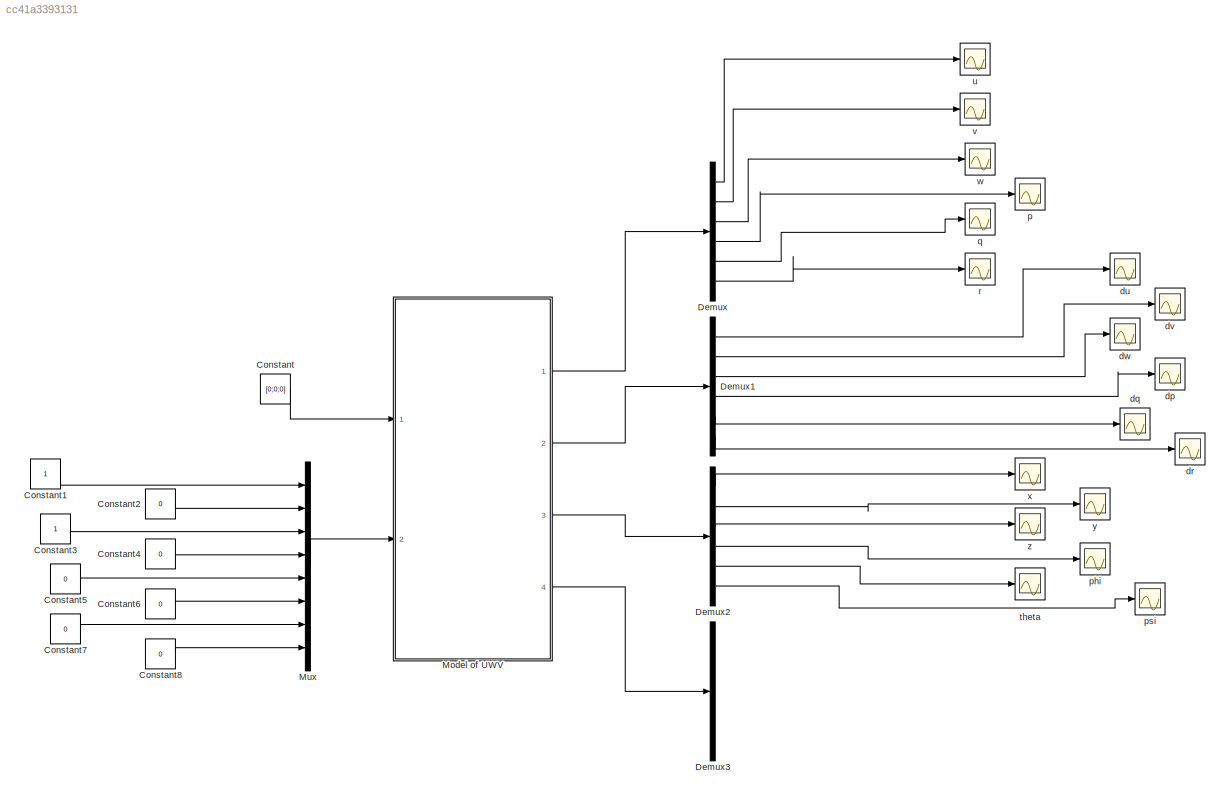
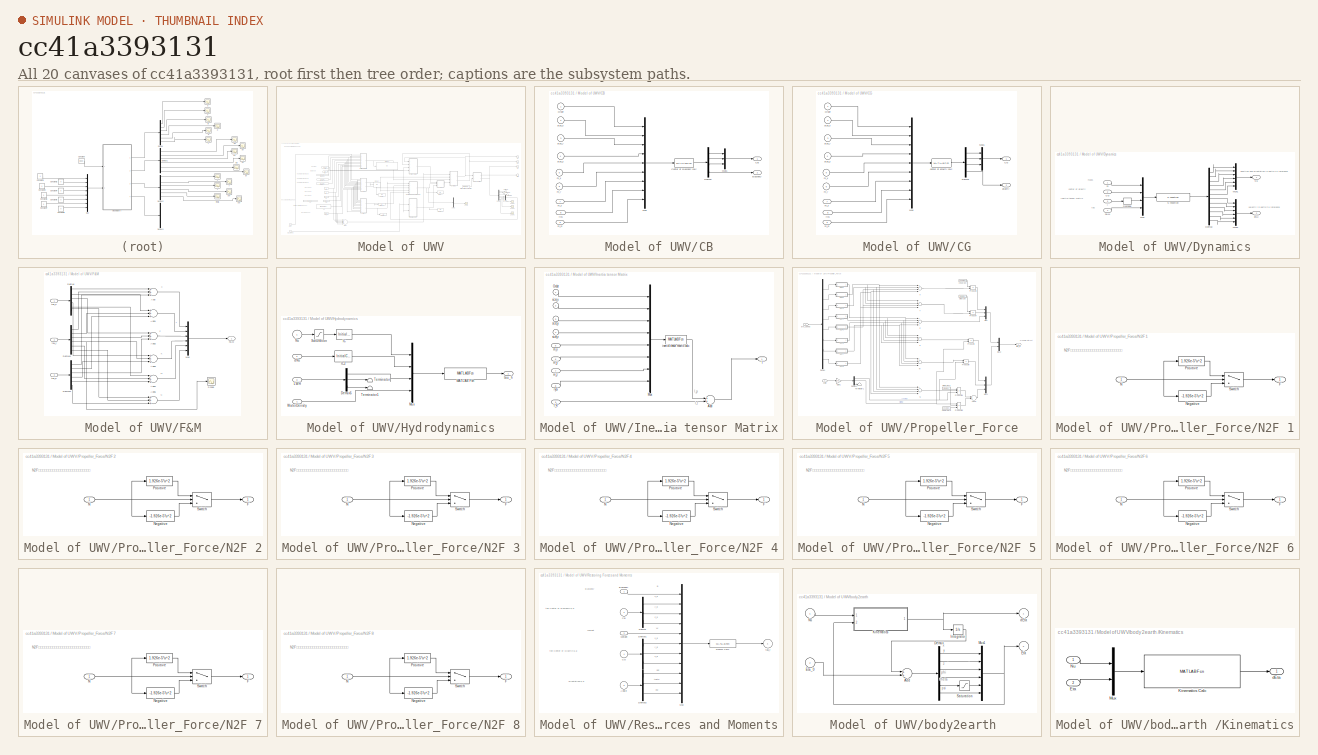
[diagram: thumbnail index - all 20 canvases of the model, root first then tree order]
MODEL slx_cc41a3393131
KIND model
CONFIG AbsTol = auto
CONFIG EnableMultiTasking = on
CONFIG FixedStep = 0.01
CONFIG MaxStep = auto
CONFIG MinStep = auto
CONFIG RelTol = 1e-3
CONFIG SampleTimeConstraint = Unconstrained
CONFIG Solver = FixedStepAuto
CONFIG SolverName = FixedStepAuto
CONFIG StartTime = 0.0
CONFIG StopTime = 5
BLOCK [Constant] Constant
  Value = [0;0;0]
BLOCK [Constant] Constant1
BLOCK [Constant] Constant2
  Value = 0
BLOCK [Constant] Constant3
BLOCK [Constant] Constant4
  Value = 0
BLOCK [Constant] Constant5
  Value = 0
BLOCK [Constant] Constant6
  Value = 0
BLOCK [Constant] Constant7
  Value = 0
BLOCK [Constant] Constant8
  Value = 0
BLOCK [Demux] Demux
  DisplayOption = bar
  Outputs = 6
  Ports = [1, 6]
BLOCK [Demux] Demux1
  DisplayOption = bar
  Outputs = 6
  Ports = [1, 6]
BLOCK [Demux] Demux2
  DisplayOption = bar
  Outputs = 6
  Ports = [1, 6]
BLOCK [Demux] Demux3
  DisplayOption = bar
  Outputs = 6
  Ports = [1, 6]
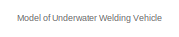
[diagram: Model of UWV - part 1/5, top left region]
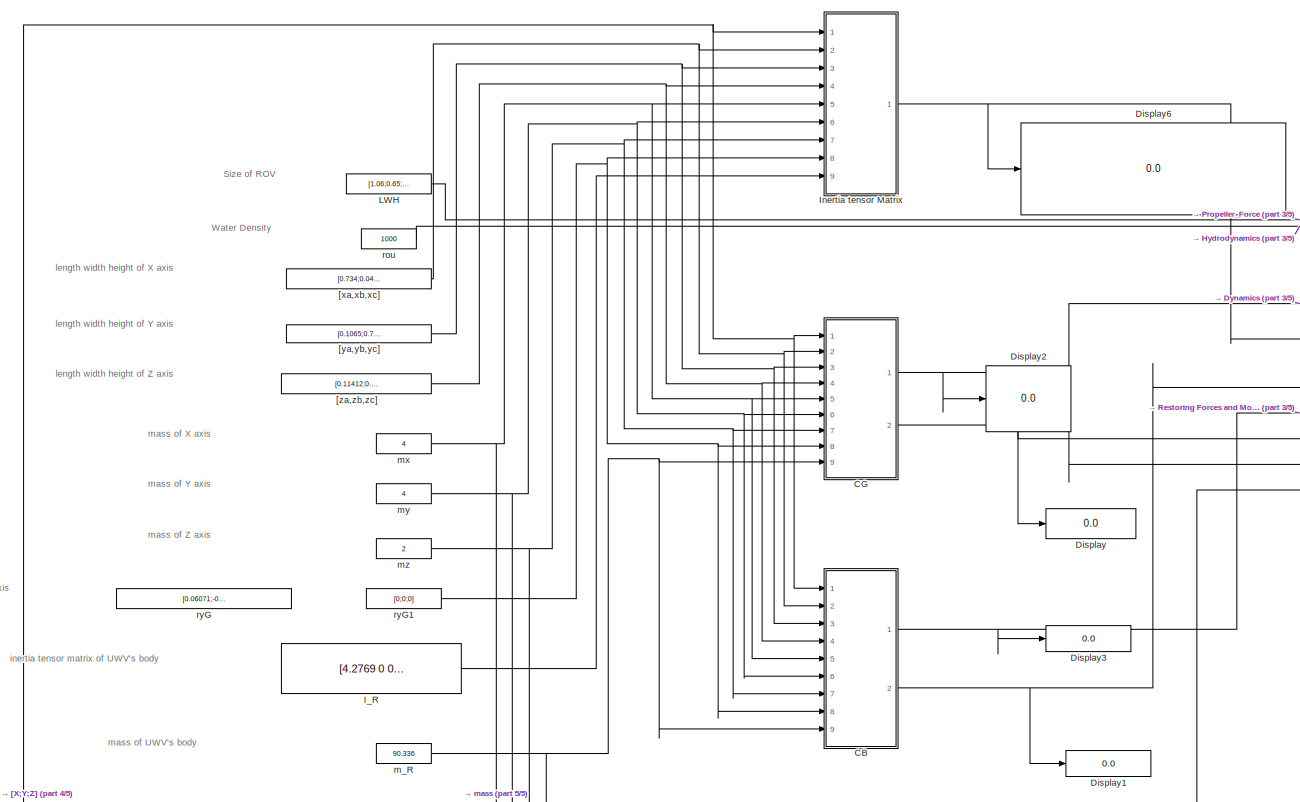
[diagram: Model of UWV - part 2/5, middle left region]
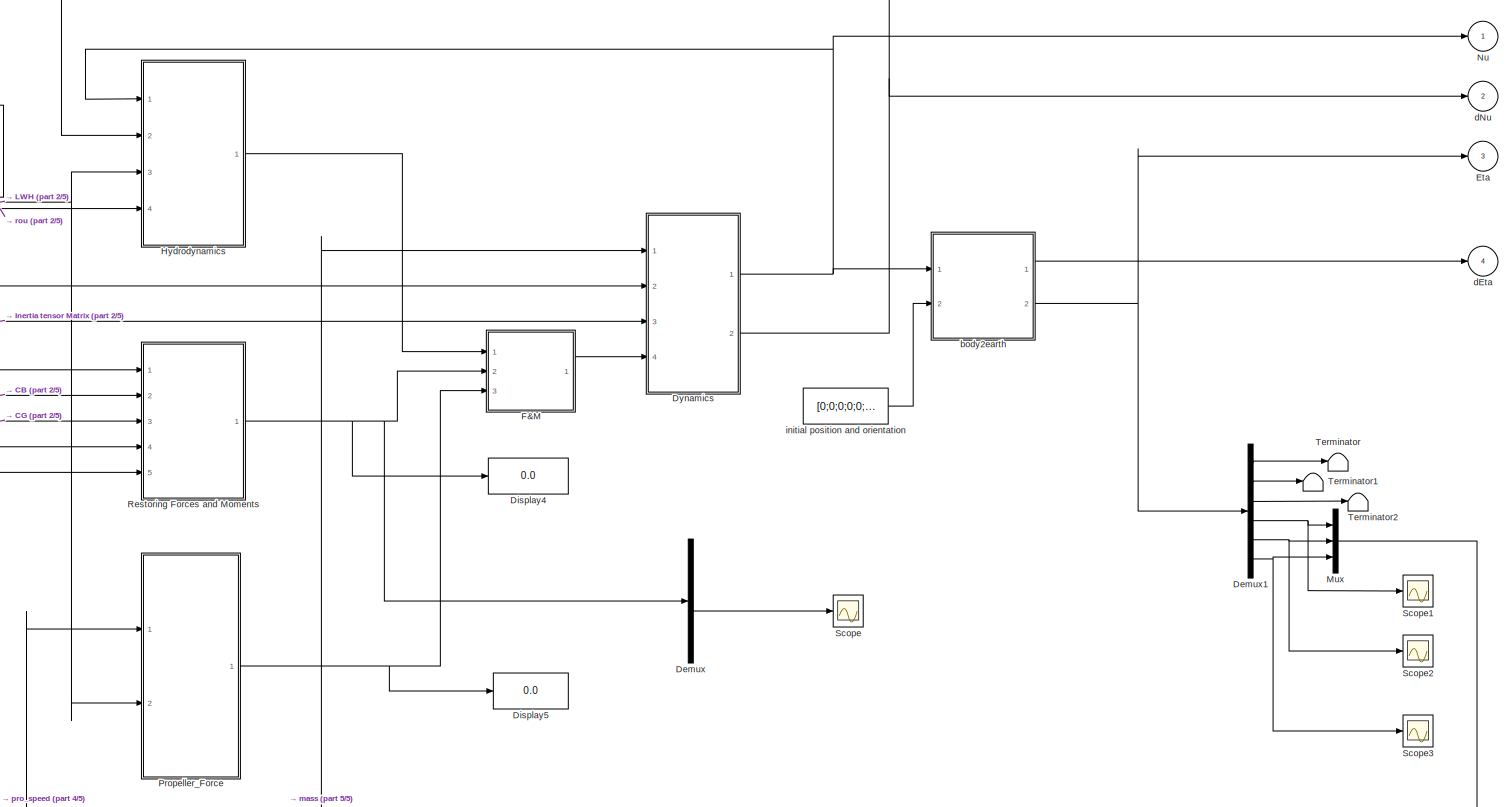
[diagram: Model of UWV - part 3/5, middle right region]
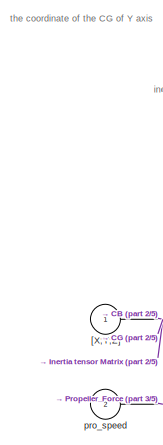
[diagram: Model of UWV - part 4/5, bottom left region]
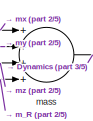
[diagram: Model of UWV - part 5/5, bottom left region]
BLOCK [SubSystem] Model of UWV
  Ports = [2, 4]
  RequestExecContextInheritance = off
  Variant = off
BLOCK [SubSystem] Model of UWV/CB
  Ports = [9, 2]
  RequestExecContextInheritance = off
  Variant = off
BLOCK [Outport] Model of UWV/CB/Buoyancy
  IconDisplay = Port number
  Port = 2
BLOCK [Outport] Model of UWV/CB/CB
  IconDisplay = Port number
BLOCK [MATLABFcn] Model of UWV/CB/Center of Buoyancy calc
  MATLABFcn = CB
  Output1D = off
  Ports = [1, 1]
BLOCK [Demux] Model of UWV/CB/Demux
  DisplayOption = bar
  Ports = [1, 4]
BLOCK [Mux] Model of UWV/CB/Mux
  DisplayOption = bar
  Inputs = 9
  Ports = [9, 1]
BLOCK [Mux] Model of UWV/CB/Mux1
  DisplayOption = bar
  Inputs = 3
  Ports = [3, 1]
BLOCK [Inport] Model of UWV/CB/Order
  IconDisplay = Port number
BLOCK [Inport] Model of UWV/CB/m_R
  IconDisplay = Port number
  Port = 9
BLOCK [Inport] Model of UWV/CB/m_x
  IconDisplay = Port number
  Port = 5
BLOCK [Inport] Model of UWV/CB/m_y
  IconDisplay = Port number
  Port = 6
BLOCK [Inport] Model of UWV/CB/m_z
  IconDisplay = Port number
  Port = 7
BLOCK [Inport] Model of UWV/CB/ryG
  IconDisplay = Port number
  Port = 8
BLOCK [Inport] Model of UWV/CB/size_x
  IconDisplay = Port number
  Port = 2
BLOCK [Inport] Model of UWV/CB/size_y
  IconDisplay = Port number
  Port = 3
BLOCK [Inport] Model of UWV/CB/size_z
  IconDisplay = Port number
  Port = 4
BLOCK [SubSystem] Model of UWV/CG
  Ports = [9, 2]
  RequestExecContextInheritance = off
  Variant = off
BLOCK [Outport] Model of UWV/CG/CG
  IconDisplay = Port number
BLOCK [Demux] Model of UWV/CG/Demux
  DisplayOption = bar
  Ports = [1, 4]
BLOCK [Mux] Model of UWV/CG/Mux
  DisplayOption = bar
  Inputs = 9
  Ports = [9, 1]
BLOCK [Mux] Model of UWV/CG/Mux1
  DisplayOption = bar
  Inputs = 3
  Ports = [3, 1]
BLOCK [Inport] Model of UWV/CG/Order
  IconDisplay = Port number
BLOCK [MATLABFcn] Model of UWV/CG/center of gravity calc
  MATLABFcn = CG
  Output1D = off
  Ports = [1, 1]
BLOCK [Outport] Model of UWV/CG/gravity
  IconDisplay = Port number
  Port = 2
BLOCK [Inport] Model of UWV/CG/m_R
  IconDisplay = Port number
  Port = 9
BLOCK [Inport] Model of UWV/CG/m_x
  IconDisplay = Port number
  Port = 5
BLOCK [Inport] Model of UWV/CG/m_y
  IconDisplay = Port number
  Port = 6
BLOCK [Inport] Model of UWV/CG/m_z
  IconDisplay = Port number
  Port = 7
BLOCK [Inport] Model of UWV/CG/ryG
  IconDisplay = Port number
  Port = 8
BLOCK [Inport] Model of UWV/CG/size_x
  IconDisplay = Port number
  Port = 2
BLOCK [Inport] Model of UWV/CG/size_y
  IconDisplay = Port number
  Port = 3
BLOCK [Inport] Model of UWV/CG/size_z
  IconDisplay = Port number
  Port = 4
BLOCK [Demux] Model of UWV/Demux
  DisplayOption = bar
  Outputs = 6
  Ports = [1, 6]
BLOCK [Demux] Model of UWV/Demux1
  DisplayOption = bar
  Outputs = 6
  Ports = [1, 6]
BLOCK [Display] Model of UWV/Display
  Decimation = 1
  Ports = [1]
BLOCK [Display] Model of UWV/Display1
  Decimation = 1
  Ports = [1]
BLOCK [Display] Model of UWV/Display2
  Decimation = 1
  Ports = [1]
BLOCK [Display] Model of UWV/Display3
  Decimation = 1
  Ports = [1]
BLOCK [Display] Model of UWV/Display4
  Decimation = 1
  Ports = [1]
BLOCK [Display] Model of UWV/Display5
  Decimation = 1
  Ports = [1]
BLOCK [Display] Model of UWV/Display6
  Decimation = 1
  Ports = [1]
BLOCK [SubSystem] Model of UWV/Dynamics
  Ports = [4, 2]
  RequestExecContextInheritance = off
  Variant = off
BLOCK [Inport] Model of UWV/Dynamics/CG
  IconDisplay = Port number
  Port = 2
BLOCK [Demux] Model of UWV/Dynamics/Demux
  DisplayOption = bar
  Outputs = 12
  Ports = [1, 12]
BLOCK [Inport] Model of UWV/Dynamics/F&M
  IconDisplay = Port number
  Port = 4
BLOCK [Inport] Model of UWV/Dynamics/I
  IconDisplay = Port number
  Port = 3
BLOCK [Mux] Model of UWV/Dynamics/Mux
  DisplayOption = bar
  Ports = [4, 1]
BLOCK [Mux] Model of UWV/Dynamics/Mux1
  DisplayOption = bar
  Inputs = 6
  Ports = [6, 1]
BLOCK [Mux] Model of UWV/Dynamics/Mux2
  DisplayOption = bar
  Inputs = 6
  Ports = [6, 1]
BLOCK [Outport] Model of UWV/Dynamics/Nu
  IconDisplay = Port number
BLOCK [Reshape] Model of UWV/Dynamics/Reshape
  Ports = [1, 1]
BLOCK [S-Function] Model of UWV/Dynamics/S-Function
  EnableBusSupport = off
  FunctionName = Dynamics
  Ports = [1, 1]
  SFcnIsStateOwnerBlock = off
  SFunctionDeploymentMode = off
BLOCK [Outport] Model of UWV/Dynamics/dNu
  IconDisplay = Port number
  Port = 2
BLOCK [Inport] Model of UWV/Dynamics/m
  IconDisplay = Port number
BLOCK [Outport] Model of UWV/Eta
  IconDisplay = Port number
  Port = 3
BLOCK [SubSystem] Model of UWV/F&M
  Ports = [3, 1]
  RequestExecContextInheritance = off
  Variant = off
BLOCK [Sum] Model of UWV/F&M/Add
  InputSameDT = off
  Inputs = +++
  OutDataTypeStr = Inherit: Inherit via internal rule
  Ports = [3, 1]
  SaturateOnIntegerOverflow = off
BLOCK [Sum] Model of UWV/F&M/Add1
  InputSameDT = off
  Inputs = +++
  OutDataTypeStr = Inherit: Inherit via internal rule
  Ports = [3, 1]
  SaturateOnIntegerOverflow = off
BLOCK [Sum] Model of UWV/F&M/Add2
  InputSameDT = off
  Inputs = +++
  OutDataTypeStr = Inherit: Inherit via internal rule
  Ports = [3, 1]
  SaturateOnIntegerOverflow = off
BLOCK [Sum] Model of UWV/F&M/Add3
  InputSameDT = off
  Inputs = +++
  OutDataTypeStr = Inherit: Inherit via internal rule
  Ports = [3, 1]
  SaturateOnIntegerOverflow = off
BLOCK [Sum] Model of UWV/F&M/Add4
  InputSameDT = off
  Inputs = +++
  OutDataTypeStr = Inherit: Inherit via internal rule
  Ports = [3, 1]
  SaturateOnIntegerOverflow = off
BLOCK [Sum] Model of UWV/F&M/Add5
  InputSameDT = off
  Inputs = +++
  OutDataTypeStr = Inherit: Inherit via internal rule
  Ports = [3, 1]
  SaturateOnIntegerOverflow = off
BLOCK [Demux] Model of UWV/F&M/Demux
  DisplayOption = bar
  Outputs = 6
  Ports = [1, 6]
BLOCK [Demux] Model of UWV/F&M/Demux1
  DisplayOption = bar
  Outputs = 6
  Ports = [1, 6]
BLOCK [Demux] Model of UWV/F&M/Demux2
  DisplayOption = bar
  Outputs = 6
  Ports = [1, 6]
BLOCK [Outport] Model of UWV/F&M/F&M
  IconDisplay = Port number
BLOCK [Mux] Model of UWV/F&M/Mux
  DisplayOption = bar
  Inputs = 6
  Ports = [6, 1]
BLOCK [Scope] Model of UWV/F&M/Scope
  NumInputPorts = 1
  Ports = [1]
  ScopeSpecificationString = C++SS(StrPVP('Location','[1, 48, 1921, 1039]'),StrPVP('Open','off'),MxPVP('AxesTitles',53,'struct(''axes1'',''%<SignalLabel>'')'),MxPVP('ScopeGraphics',56,'struct(''FigureColor'',''[0.5 0.5 0.5]'',''AxesColor'',''[0 0 0]'',''AxesTickColor'',''[1 1 1]'',''LineColors'',''[1 1 0;1 0 1;0 1 1;1 0 0;0 1 0;0 0 1]'',''LineStyles'',''-|-|-|-|-|-'',''LineWidths'',''[0.5 0.5 0.5 0.5 0.5 0.5]'',''MarkerStyles...<+271ch>
BLOCK [Inport] Model of UWV/F&M/tau_h
  IconDisplay = Port number
BLOCK [Inport] Model of UWV/F&M/tau_p
  IconDisplay = Port number
  Port = 3
BLOCK [Inport] Model of UWV/F&M/tau_r
  IconDisplay = Port number
  Port = 2
BLOCK [SubSystem] Model of UWV/Hydrodynamics
  Ports = [4, 1]
  RequestExecContextInheritance = off
  Variant = off
BLOCK [Demux] Model of UWV/Hydrodynamics/Demux5
  DisplayOption = bar
  Outputs = 3
  Ports = [1, 3]
BLOCK [InitialCondition] Model of UWV/Hydrodynamics/IC
  Value = 0.001
BLOCK [InitialCondition] Model of UWV/Hydrodynamics/IC2
  Value = 0.001
BLOCK [Inport] Model of UWV/Hydrodynamics/LWH
  IconDisplay = Port number
  Port = 3
BLOCK [MATLABFcn] Model of UWV/Hydrodynamics/MATLAB Fcn
  MATLABFcn = Hydrodynamics
  Output1D = off
  OutputDimensions = 6
  Ports = [1, 1]
BLOCK [Mux] Model of UWV/Hydrodynamics/Mux
  DisplayOption = bar
  Ports = [4, 1]
BLOCK [Inport] Model of UWV/Hydrodynamics/Nu
  IconDisplay = Port number
BLOCK [Saturate] Model of UWV/Hydrodynamics/Saturation
  InputPortMap = u0
  LowerLimit = -0.8
  Ports = [1, 1]
  UpperLimit = 0.8
BLOCK [Terminator] Model of UWV/Hydrodynamics/Terminator
BLOCK [Terminator] Model of UWV/Hydrodynamics/Terminator1
BLOCK [Inport] Model of UWV/Hydrodynamics/WaterDensity
  IconDisplay = Port number
  Port = 4
BLOCK [Inport] Model of UWV/Hydrodynamics/dNu
  IconDisplay = Port number
  Port = 2
BLOCK [Outport] Model of UWV/Hydrodynamics/tau_h
  IconDisplay = Port number
BLOCK [Constant] Model of UWV/I_R
  Value = [4.2769 0 0;0 10.546 0;0 0 11.5899]
BLOCK [SubSystem] Model of UWV/Inertia tensor Matrix
  Ports = [9, 1]
  RequestExecContextInheritance = off
  Variant = off
BLOCK [Sum] Model of UWV/Inertia tensor Matrix/Add
  InputSameDT = off
  OutDataTypeStr = Inherit: Inherit via internal rule
  Ports = [2, 1]
  SaturateOnIntegerOverflow = off
BLOCK [Outport] Model of UWV/Inertia tensor Matrix/I
  IconDisplay = Port number
BLOCK [Inport] Model of UWV/Inertia tensor Matrix/I_R
  IconDisplay = Port number
  Port = 9
BLOCK [Mux] Model of UWV/Inertia tensor Matrix/Mux
  DisplayOption = bar
  Inputs = 8
  Ports = [8, 1]
BLOCK [Inport] Model of UWV/Inertia tensor Matrix/Order
  IconDisplay = Port number
BLOCK [MATLABFcn] Model of UWV/Inertia tensor Matrix/inertia tensor matrix calc
  MATLABFcn = InertiaTensorMatrix
  Output1D = off
  Ports = [1, 1]
BLOCK [Inport] Model of UWV/Inertia tensor Matrix/m_x
  IconDisplay = Port number
  Port = 5
BLOCK [Inport] Model of UWV/Inertia tensor Matrix/m_y
  IconDisplay = Port number
  Port = 6
BLOCK [Inport] Model of UWV/Inertia tensor Matrix/m_z
  IconDisplay = Port number
  Port = 7
BLOCK [Inport] Model of UWV/Inertia tensor Matrix/ryG
  IconDisplay = Port number
  Port = 8
BLOCK [Inport] Model of UWV/Inertia tensor Matrix/size_x
  IconDisplay = Port number
  Port = 2
BLOCK [Inport] Model of UWV/Inertia tensor Matrix/size_y
  IconDisplay = Port number
  Port = 3
BLOCK [Inport] Model of UWV/Inertia tensor Matrix/size_z
  IconDisplay = Port number
  Port = 4
BLOCK [Constant] Model of UWV/LWH
  Value = [1.06;0.65;0.66]
BLOCK [Mux] Model of UWV/Mux
  DisplayOption = bar
  Inputs = 3
  Ports = [3, 1]
BLOCK [Outport] Model of UWV/Nu
  IconDisplay = Port number
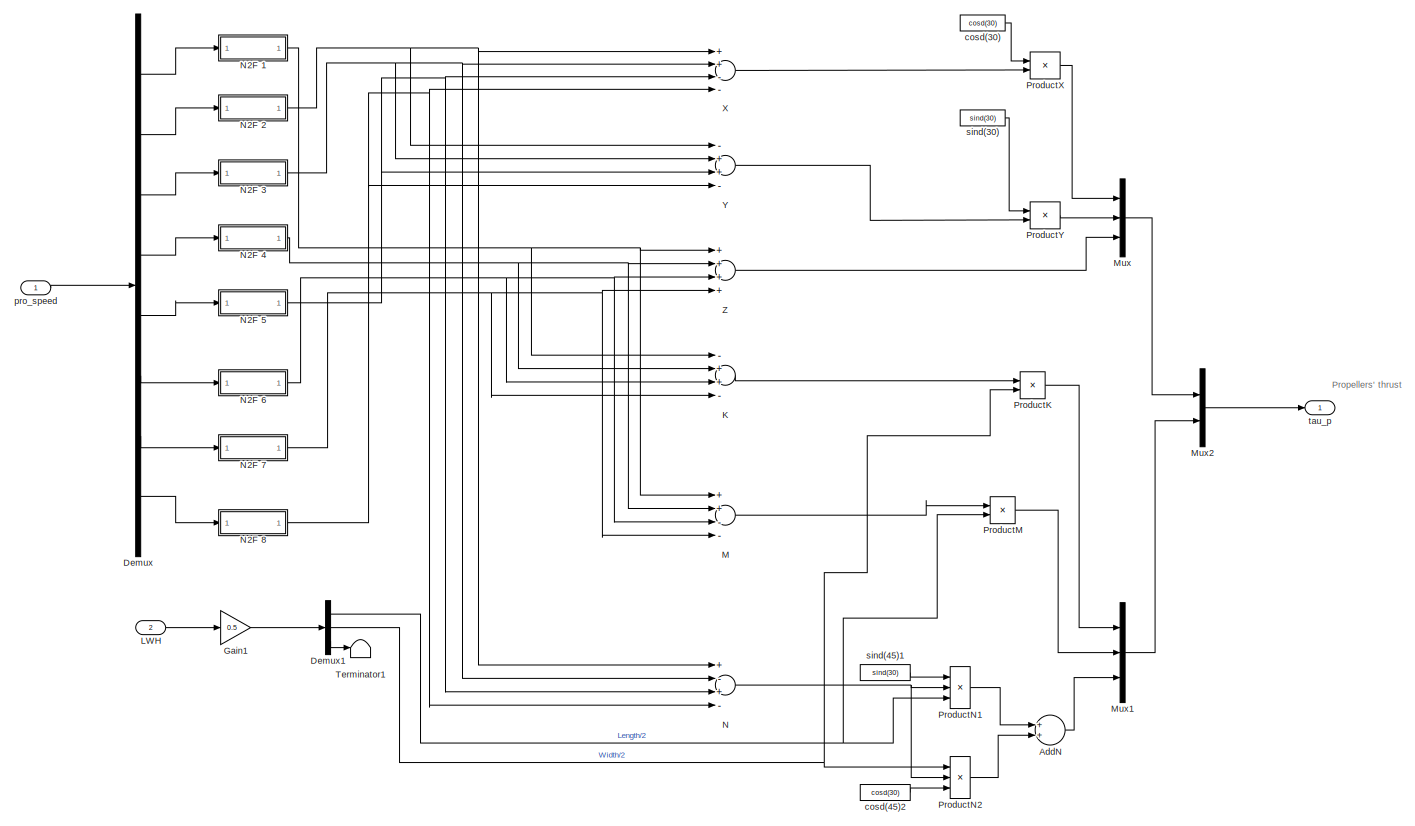
[diagram: Model of UWV/Propeller_Force - part 1/1, most of the canvas]
BLOCK [SubSystem] Model of UWV/Propeller_Force
  Ports = [2, 1]
  RequestExecContextInheritance = off
  Variant = off
BLOCK [Sum] Model of UWV/Propeller_Force/AddN
  InputSameDT = off
  OutDataTypeStr = Inherit: Inherit via internal rule
  Ports = [2, 1]
  SaturateOnIntegerOverflow = off
BLOCK [Demux] Model of UWV/Propeller_Force/Demux
  DisplayOption = bar
  Outputs = 8
  Ports = [1, 8]
BLOCK [Demux] Model of UWV/Propeller_Force/Demux1
  DisplayOption = bar
  Outputs = 3
  Ports = [1, 3]
BLOCK [Gain] Model of UWV/Propeller_Force/Gain1
  Gain = 0.5
  OutDataTypeStr = Inherit: Inherit via internal rule
  ParamDataTypeStr = Inherit: Inherit via internal rule
  SaturateOnIntegerOverflow = off
BLOCK [Sum] Model of UWV/Propeller_Force/K
  InputSameDT = off
  Inputs = -++-
  OutDataTypeStr = Inherit: Inherit via internal rule
  Ports = [4, 1]
  SaturateOnIntegerOverflow = off
BLOCK [Inport] Model of UWV/Propeller_Force/LWH
  IconDisplay = Port number
  Port = 2
BLOCK [Sum] Model of UWV/Propeller_Force/M
  InputSameDT = off
  Inputs = ++--
  OutDataTypeStr = Inherit: Inherit via internal rule
  Ports = [4, 1]
  SaturateOnIntegerOverflow = off
BLOCK [Mux] Model of UWV/Propeller_Force/Mux
  DisplayOption = bar
  Inputs = 3
  Ports = [3, 1]
BLOCK [Mux] Model of UWV/Propeller_Force/Mux1
  DisplayOption = bar
  Inputs = 3
  Ports = [3, 1]
BLOCK [Mux] Model of UWV/Propeller_Force/Mux2
  DisplayOption = bar
  Inputs = 2
  Ports = [2, 1]
BLOCK [Sum] Model of UWV/Propeller_Force/N
  InputSameDT = off
  Inputs = +-+-
  OutDataTypeStr = Inherit: Inherit via internal rule
  Ports = [4, 1]
  SaturateOnIntegerOverflow = off
BLOCK [SubSystem] Model of UWV/Propeller_Force/N2F 1
  Ports = [1, 1]
  RequestExecContextInheritance = off
  Variant = off
BLOCK [Outport] Model of UWV/Propeller_Force/N2F 1/F
  IconDisplay = Port number
BLOCK [Inport] Model of UWV/Propeller_Force/N2F 1/N
  IconDisplay = Port number
BLOCK [Fcn] Model of UWV/Propeller_Force/N2F 1/Negative
  Expr = -1.926e-5*u^2
BLOCK [Fcn] Model of UWV/Propeller_Force/N2F 1/Positive
  Expr = 1.926e-5*u^2
BLOCK [Switch] Model of UWV/Propeller_Force/N2F 1/Switch
  Criteria = u2 > Threshold
  InputSameDT = off
  SaturateOnIntegerOverflow = off
BLOCK [SubSystem] Model of UWV/Propeller_Force/N2F 2
  Ports = [1, 1]
  RequestExecContextInheritance = off
  Variant = off
BLOCK [Outport] Model of UWV/Propeller_Force/N2F 2/F
  IconDisplay = Port number
BLOCK [Inport] Model of UWV/Propeller_Force/N2F 2/N
  IconDisplay = Port number
BLOCK [Fcn] Model of UWV/Propeller_Force/N2F 2/Negative
  Expr = -1.926e-5*u^2
BLOCK [Fcn] Model of UWV/Propeller_Force/N2F 2/Positive
  Expr = 1.926e-5*u^2
BLOCK [Switch] Model of UWV/Propeller_Force/N2F 2/Switch
  Criteria = u2 > Threshold
  InputSameDT = off
  SaturateOnIntegerOverflow = off
BLOCK [SubSystem] Model of UWV/Propeller_Force/N2F 3
  Ports = [1, 1]
  RequestExecContextInheritance = off
  Variant = off
BLOCK [Outport] Model of UWV/Propeller_Force/N2F 3/F
  IconDisplay = Port number
BLOCK [Inport] Model of UWV/Propeller_Force/N2F 3/N
  IconDisplay = Port number
BLOCK [Fcn] Model of UWV/Propeller_Force/N2F 3/Negative
  Expr = -1.926e-5*u^2
BLOCK [Fcn] Model of UWV/Propeller_Force/N2F 3/Positive
  Expr = 1.926e-5*u^2
BLOCK [Switch] Model of UWV/Propeller_Force/N2F 3/Switch
  Criteria = u2 > Threshold
  InputSameDT = off
  SaturateOnIntegerOverflow = off
BLOCK [SubSystem] Model of UWV/Propeller_Force/N2F 4
  Ports = [1, 1]
  RequestExecContextInheritance = off
  Variant = off
BLOCK [Outport] Model of UWV/Propeller_Force/N2F 4/F
  IconDisplay = Port number
BLOCK [Inport] Model of UWV/Propeller_Force/N2F 4/N
  IconDisplay = Port number
BLOCK [Fcn] Model of UWV/Propeller_Force/N2F 4/Negative
  Expr = -1.926e-5*u^2
BLOCK [Fcn] Model of UWV/Propeller_Force/N2F 4/Positive
  Expr = 1.926e-5*u^2
BLOCK [Switch] Model of UWV/Propeller_Force/N2F 4/Switch
  Criteria = u2 > Threshold
  InputSameDT = off
  SaturateOnIntegerOverflow = off
BLOCK [SubSystem] Model of UWV/Propeller_Force/N2F 5
  Ports = [1, 1]
  RequestExecContextInheritance = off
  Variant = off
BLOCK [Outport] Model of UWV/Propeller_Force/N2F 5/F
  IconDisplay = Port number
BLOCK [Inport] Model of UWV/Propeller_Force/N2F 5/N
  IconDisplay = Port number
BLOCK [Fcn] Model of UWV/Propeller_Force/N2F 5/Negative
  Expr = -1.926e-5*u^2
BLOCK [Fcn] Model of UWV/Propeller_Force/N2F 5/Positive
  Expr = 1.926e-5*u^2
BLOCK [Switch] Model of UWV/Propeller_Force/N2F 5/Switch
  Criteria = u2 > Threshold
  InputSameDT = off
  SaturateOnIntegerOverflow = off
BLOCK [SubSystem] Model of UWV/Propeller_Force/N2F 6
  Ports = [1, 1]
  RequestExecContextInheritance = off
  Variant = off
BLOCK [Outport] Model of UWV/Propeller_Force/N2F 6/F
  IconDisplay = Port number
BLOCK [Inport] Model of UWV/Propeller_Force/N2F 6/N
  IconDisplay = Port number
BLOCK [Fcn] Model of UWV/Propeller_Force/N2F 6/Negative
  Expr = -1.926e-5*u^2
BLOCK [Fcn] Model of UWV/Propeller_Force/N2F 6/Positive
  Expr = 1.926e-5*u^2
BLOCK [Switch] Model of UWV/Propeller_Force/N2F 6/Switch
  Criteria = u2 > Threshold
  InputSameDT = off
  SaturateOnIntegerOverflow = off
BLOCK [SubSystem] Model of UWV/Propeller_Force/N2F 7
  Ports = [1, 1]
  RequestExecContextInheritance = off
  Variant = off
BLOCK [Outport] Model of UWV/Propeller_Force/N2F 7/F
  IconDisplay = Port number
BLOCK [Inport] Model of UWV/Propeller_Force/N2F 7/N
  IconDisplay = Port number
BLOCK [Fcn] Model of UWV/Propeller_Force/N2F 7/Negative
  Expr = -1.926e-5*u^2
BLOCK [Fcn] Model of UWV/Propeller_Force/N2F 7/Positive
  Expr = 1.926e-5*u^2
BLOCK [Switch] Model of UWV/Propeller_Force/N2F 7/Switch
  Criteria = u2 > Threshold
  InputSameDT = off
  SaturateOnIntegerOverflow = off
BLOCK [SubSystem] Model of UWV/Propeller_Force/N2F 8
  Ports = [1, 1]
  RequestExecContextInheritance = off
  Variant = off
BLOCK [Outport] Model of UWV/Propeller_Force/N2F 8/F
  IconDisplay = Port number
BLOCK [Inport] Model of UWV/Propeller_Force/N2F 8/N
  IconDisplay = Port number
BLOCK [Fcn] Model of UWV/Propeller_Force/N2F 8/Negative
  Expr = -1.926e-5*u^2
BLOCK [Fcn] Model of UWV/Propeller_Force/N2F 8/Positive
  Expr = 1.926e-5*u^2
BLOCK [Switch] Model of UWV/Propeller_Force/N2F 8/Switch
  Criteria = u2 > Threshold
  InputSameDT = off
  SaturateOnIntegerOverflow = off
BLOCK [Product] Model of UWV/Propeller_Force/ProductK
  InputSameDT = off
  OutDataTypeStr = Inherit: Inherit via internal rule
  Ports = [2, 1]
  RndMeth = Floor
  SaturateOnIntegerOverflow = off
BLOCK [Product] Model of UWV/Propeller_Force/ProductM
  InputSameDT = off
  OutDataTypeStr = Inherit: Inherit via internal rule
  Ports = [2, 1]
  RndMeth = Floor
  SaturateOnIntegerOverflow = off
BLOCK [Product] Model of UWV/Propeller_Force/ProductN1
  InputSameDT = off
  Inputs = 3
  OutDataTypeStr = Inherit: Inherit via internal rule
  Ports = [3, 1]
  RndMeth = Floor
  SaturateOnIntegerOverflow = off
BLOCK [Product] Model of UWV/Propeller_Force/ProductN2
  InputSameDT = off
  Inputs = 3
  OutDataTypeStr = Inherit: Inherit via internal rule
  Ports = [3, 1]
  RndMeth = Floor
  SaturateOnIntegerOverflow = off
BLOCK [Product] Model of UWV/Propeller_Force/ProductX
  InputSameDT = off
  OutDataTypeStr = Inherit: Inherit via internal rule
  Ports = [2, 1]
  RndMeth = Floor
  SaturateOnIntegerOverflow = off
BLOCK [Product] Model of UWV/Propeller_Force/ProductY
  InputSameDT = off
  OutDataTypeStr = Inherit: Inherit via internal rule
  Ports = [2, 1]
  RndMeth = Floor
  SaturateOnIntegerOverflow = off
BLOCK [Terminator] Model of UWV/Propeller_Force/Terminator1
BLOCK [Sum] Model of UWV/Propeller_Force/X
  InputSameDT = off
  Inputs = ++--
  OutDataTypeStr = Inherit: Inherit via internal rule
  Ports = [4, 1]
  SaturateOnIntegerOverflow = off
BLOCK [Sum] Model of UWV/Propeller_Force/Y
  InputSameDT = off
  Inputs = -++-
  OutDataTypeStr = Inherit: Inherit via internal rule
  Ports = [4, 1]
  SaturateOnIntegerOverflow = off
BLOCK [Sum] Model of UWV/Propeller_Force/Z
  InputSameDT = off
  Inputs = ++++
  OutDataTypeStr = Inherit: Inherit via internal rule
  Ports = [4, 1]
  SaturateOnIntegerOverflow = off
BLOCK [Constant] Model of UWV/Propeller_Force/cosd(30)
  Value = cosd(30)
BLOCK [Constant] Model of UWV/Propeller_Force/cosd(45)2
  Value = cosd(30)
BLOCK [Inport] Model of UWV/Propeller_Force/pro_speed
  IconDisplay = Port number
BLOCK [Constant] Model of UWV/Propeller_Force/sind(30)
  Value = sind(30)
BLOCK [Constant] Model of UWV/Propeller_Force/sind(45)1
  Value = sind(30)
BLOCK [Outport] Model of UWV/Propeller_Force/tau_p
  IconDisplay = Port number
BLOCK [SubSystem] Model of UWV/Restoring Forces and Moments
  Ports = [5, 1]
  RequestExecContextInheritance = off
  Variant = off
BLOCK [Inport] Model of UWV/Restoring Forces and Moments/Angle
  IconDisplay = Port number
  Port = 5
BLOCK [Inport] Model of UWV/Restoring Forces and Moments/Buoyancy
  IconDisplay = Port number
BLOCK [Inport] Model of UWV/Restoring Forces and Moments/CB
  IconDisplay = Port number
  Port = 2
BLOCK [Inport] Model of UWV/Restoring Forces and Moments/CG
  IconDisplay = Port number
  Port = 4
BLOCK [Demux] Model of UWV/Restoring Forces and Moments/Demux
  DisplayOption = bar
  Outputs = 3
  Ports = [1, 3]
BLOCK [Demux] Model of UWV/Restoring Forces and Moments/Demux1
  DisplayOption = bar
  Outputs = 3
  Ports = [1, 3]
BLOCK [Demux] Model of UWV/Restoring Forces and Moments/Demux2
  DisplayOption = bar
  Outputs = 3
  Ports = [1, 3]
BLOCK [Mux] Model of UWV/Restoring Forces and Moments/Mux
  DisplayOption = bar
  Inputs = 11
  Ports = [11, 1]
BLOCK [MATLABFcn] Model of UWV/Restoring Forces and Moments/RFMM Calc
  MATLABFcn = RFMM
  OutputDimensions = 6
  Ports = [1, 1]
BLOCK [Inport] Model of UWV/Restoring Forces and Moments/Weight
  IconDisplay = Port number
  Port = 3
BLOCK [Outport] Model of UWV/Restoring Forces and Moments/tau_r
  IconDisplay = Port number
BLOCK [Scope] Model of UWV/Scope
  NumInputPorts = 1
  Ports = [1]
  ScopeSpecificationString = C++SS(StrPVP('Location','[5, 48, 1925, 1039]'),StrPVP('Open','off'),MxPVP('AxesTitles',53,'struct(''axes1'',''%<SignalLabel>'')'),MxPVP('ScopeGraphics',56,'struct(''FigureColor'',''[0.5 0.5 0.5]'',''AxesColor'',''[0 0 0]'',''AxesTickColor'',''[1 1 1]'',''LineColors'',''[1 1 0;1 0 1;0 1 1;1 0 0;0 1 0;0 0 1]'',''LineStyles'',''-|-|-|-|-|-'',''LineWidths'',''[0.5 0.5 0.5 0.5 0.5 0.5]'',''MarkerStyles...<+249ch>  <repeated x4 — deduplicated; at blocks: Scope, Scope1, Scope2, Scope3>
BLOCK [Scope] Model of UWV/Scope1
  NumInputPorts = 1
  Ports = [1]
BLOCK [Scope] Model of UWV/Scope2
  NumInputPorts = 1
  Ports = [1]
BLOCK [Scope] Model of UWV/Scope3
  NumInputPorts = 1
  Ports = [1]
BLOCK [Terminator] Model of UWV/Terminator
BLOCK [Terminator] Model of UWV/Terminator1
BLOCK [Terminator] Model of UWV/Terminator2
BLOCK [Inport] Model of UWV/[X;Y;Z]
  IconDisplay = Port number
BLOCK [Constant] Model of UWV/[xa,xb,xc]
  Value = [0.734;0.0445;0.0735]
BLOCK [Constant] Model of UWV/[ya,yb,yc]
  Value = [0.1065;0.704;0.0445]
BLOCK [Constant] Model of UWV/[za,zb,zc]
  Value = [0.11412;0.038;0.228]
BLOCK [SubSystem] Model of UWV/body2earth 
  Ports = [2, 2]
  RequestExecContextInheritance = off
  Variant = off
BLOCK [Sum] Model of UWV/body2earth /Add
  InputSameDT = off
  OutDataTypeStr = Inherit: Inherit via internal rule
  Ports = [2, 1]
  SaturateOnIntegerOverflow = off
BLOCK [Demux] Model of UWV/body2earth /Demux
  DisplayOption = bar
  Outputs = 6
  Ports = [1, 6]
BLOCK [Outport] Model of UWV/body2earth /Eta
  IconDisplay = Port number
  Port = 2
BLOCK [Inport] Model of UWV/body2earth /Eta_0
  IconDisplay = Port number
  Port = 2
BLOCK [Integrator] Model of UWV/body2earth /Integrator
  Ports = [1, 1]
BLOCK [SubSystem] Model of UWV/body2earth /Kinematics
  Ports = [2, 1]
  RequestExecContextInheritance = off
  Variant = off
BLOCK [Inport] Model of UWV/body2earth /Kinematics/Eta
  IconDisplay = Port number
  Port = 2
BLOCK [MATLABFcn] Model of UWV/body2earth /Kinematics/Kinematics Calc
  MATLABFcn = Kinematics
  Ports = [1, 1]
BLOCK [Mux] Model of UWV/body2earth /Kinematics/Mux
  DisplayOption = bar
  Inputs = 2
  Ports = [2, 1]
BLOCK [Inport] Model of UWV/body2earth /Kinematics/Nu
  IconDisplay = Port number
BLOCK [Outport] Model of UWV/body2earth /Kinematics/dEta
  IconDisplay = Port number
BLOCK [Mux] Model of UWV/body2earth /Mux1
  DisplayOption = bar
  Inputs = 6
  Ports = [6, 1]
BLOCK [Inport] Model of UWV/body2earth /Nu
  IconDisplay = Port number
BLOCK [Saturate] Model of UWV/body2earth /Saturation
  InputPortMap = u0
  LowerLimit = -1.4
  Ports = [1, 1]
  UpperLimit = 1.4
BLOCK [Outport] Model of UWV/body2earth /dEta
  IconDisplay = Port number
BLOCK [Outport] Model of UWV/dEta
  IconDisplay = Port number
  Port = 4
BLOCK [Outport] Model of UWV/dNu
  IconDisplay = Port number
  Port = 2
BLOCK [Constant] Model of UWV/initial position and orientation
  Value = [0;0;0;0;0;0]
BLOCK [Constant] Model of UWV/m_R
  Value = 90.336
BLOCK [Sum] Model of UWV/mass
  InputSameDT = off
  Inputs = ++++
  OutDataTypeStr = Inherit: Inherit via internal rule
  Ports = [4, 1]
  SaturateOnIntegerOverflow = off
BLOCK [Constant] Model of UWV/mx
  Value = 4
BLOCK [Constant] Model of UWV/my
  Value = 4
BLOCK [Constant] Model of UWV/mz
  Value = 2
BLOCK [Inport] Model of UWV/pro_speed
  IconDisplay = Port number
  Port = 2
BLOCK [Constant] Model of UWV/rou
  Value = 1000
BLOCK [Constant] Model of UWV/ryG
  Value = [0.06071;-0.00355;0.02304]
BLOCK [Constant] Model of UWV/ryG1
  Value = [0;0;0]
BLOCK [Mux] Mux
  DisplayOption = bar
  Inputs = 8
  Ports = [8, 1]
BLOCK [Scope] dp
  NumInputPorts = 1
  Ports = [1]
  ScopeSpecificationString = C++SS(StrPVP('Location','[188, 365, 512, 604]'),StrPVP('Open','off'),MxPVP('AxesTitles',53,'struct(''axes1'',''%<SignalLabel>'')'),StrPVP('ShowLegends','off'),StrPVP('SaveName','ScopeData9'),StrPVP('LimitDataPoints','on'),StrPVP('DataFormat','Array'),StrPVP('Decimation','1'),StrPVP('BlockParamSampleInput','off'))
BLOCK [Scope] dq
  NumInputPorts = 1
  Ports = [1]
  ScopeSpecificationString = C++SS(StrPVP('Location','[188, 365, 512, 604]'),StrPVP('Open','off'),MxPVP('AxesTitles',53,'struct(''axes1'',''%<SignalLabel>'')'),StrPVP('ShowLegends','off'),StrPVP('SaveName','ScopeData10'),StrPVP('LimitDataPoints','on'),StrPVP('DataFormat','Array'),StrPVP('Decimation','1'),StrPVP('BlockParamSampleInput','off'))
BLOCK [Scope] dr
  NumInputPorts = 1
  Ports = [1]
  ScopeSpecificationString = C++SS(StrPVP('Location','[188, 365, 512, 604]'),StrPVP('Open','off'),MxPVP('AxesTitles',53,'struct(''axes1'',''%<SignalLabel>'')'),StrPVP('ShowLegends','off'),StrPVP('SaveName','ScopeData11'),StrPVP('LimitDataPoints','on'),StrPVP('DataFormat','Array'),StrPVP('Decimation','1'),StrPVP('BlockParamSampleInput','off'))
BLOCK [Scope] du
  NumInputPorts = 1
  Ports = [1]
  ScopeSpecificationString = C++SS(StrPVP('Location','[188, 365, 512, 604]'),StrPVP('Open','off'),MxPVP('AxesTitles',53,'struct(''axes1'',''%<SignalLabel>'')'),StrPVP('ShowLegends','off'),StrPVP('SaveName','ScopeData6'),StrPVP('LimitDataPoints','on'),StrPVP('DataFormat','Array'),StrPVP('Decimation','1'),StrPVP('BlockParamSampleInput','off'))
BLOCK [Scope] dv
  NumInputPorts = 1
  Ports = [1]
  ScopeSpecificationString = C++SS(StrPVP('Location','[188, 365, 512, 604]'),StrPVP('Open','off'),MxPVP('AxesTitles',53,'struct(''axes1'',''%<SignalLabel>'')'),StrPVP('ShowLegends','off'),StrPVP('SaveName','ScopeData7'),StrPVP('LimitDataPoints','on'),StrPVP('DataFormat','Array'),StrPVP('Decimation','1'),StrPVP('BlockParamSampleInput','off'))
BLOCK [Scope] dw
  NumInputPorts = 1
  Ports = [1]
  ScopeSpecificationString = C++SS(StrPVP('Location','[188, 365, 512, 604]'),StrPVP('Open','off'),MxPVP('AxesTitles',53,'struct(''axes1'',''%<SignalLabel>'')'),StrPVP('ShowLegends','off'),StrPVP('SaveName','ScopeData8'),StrPVP('LimitDataPoints','on'),StrPVP('DataFormat','Array'),StrPVP('Decimation','1'),StrPVP('BlockParamSampleInput','off'))
BLOCK [Scope] p
  NumInputPorts = 1
  Ports = [1]
  ScopeSpecificationString = C++SS(StrPVP('Location','[188, 365, 512, 604]'),StrPVP('Open','off'),MxPVP('AxesTitles',53,'struct(''axes1'',''%<SignalLabel>'')'),StrPVP('ShowLegends','off'),StrPVP('SaveName','ScopeData3'),StrPVP('LimitDataPoints','on'),StrPVP('DataFormat','Array'),StrPVP('Decimation','1'),StrPVP('BlockParamSampleInput','off'))
BLOCK [Scope] phi
  NumInputPorts = 1
  Ports = [1]
  ScopeSpecificationString = C++SS(StrPVP('Location','[5, 48, 1925, 1039]'),StrPVP('Open','off'),MxPVP('AxesTitles',53,'struct(''axes1'',''%<SignalLabel>'')'),MxPVP('ScopeGraphics',56,'struct(''FigureColor'',''[0.5 0.5 0.5]'',''AxesColor'',''[0 0 0]'',''AxesTickColor'',''[1 1 1]'',''LineColors'',''[1 1 0;1 0 1;0 1 1;1 0 0;0 1 0;0 0 1]'',''LineStyles'',''-|-|-|-|-|-'',''LineWidths'',''[0.5 0.5 0.5 0.5 0.5 0.5]'',''MarkerStyles...<+289ch>
BLOCK [Scope] psi
  NumInputPorts = 1
  Ports = [1]
  ScopeSpecificationString = C++SS(StrPVP('Location','[188, 365, 512, 604]'),StrPVP('Open','off'),MxPVP('AxesTitles',53,'struct(''axes1'',''%<SignalLabel>'')'),MxPVP('ScopeGraphics',56,'struct(''FigureColor'',''[0.5 0.5 0.5]'',''AxesColor'',''[0 0 0]'',''AxesTickColor'',''[1 1 1]'',''LineColors'',''[1 1 0;1 0 1;0 1 1;1 0 0;0 1 0;0 0 1]'',''LineStyles'',''-|-|-|-|-|-'',''LineWidths'',''[0.5 0.5 0.5 0.5 0.5 0.5]'',''MarkerStyle...<+225ch>  <repeated x4 — deduplicated; at blocks: psi, theta, y, z>
BLOCK [Scope] q
  NumInputPorts = 1
  Ports = [1]
  ScopeSpecificationString = C++SS(StrPVP('Location','[188, 365, 512, 604]'),StrPVP('Open','off'),MxPVP('AxesTitles',53,'struct(''axes1'',''%<SignalLabel>'')'),StrPVP('ShowLegends','off'),StrPVP('SaveName','ScopeData4'),StrPVP('LimitDataPoints','on'),StrPVP('DataFormat','Array'),StrPVP('Decimation','1'),StrPVP('BlockParamSampleInput','off'))
BLOCK [Scope] r
  NumInputPorts = 1
  Ports = [1]
  ScopeSpecificationString = C++SS(StrPVP('Location','[188, 365, 512, 604]'),StrPVP('Open','off'),MxPVP('AxesTitles',53,'struct(''axes1'',''%<SignalLabel>'')'),StrPVP('ShowLegends','off'),StrPVP('SaveName','ScopeData5'),StrPVP('LimitDataPoints','on'),StrPVP('DataFormat','Array'),StrPVP('Decimation','1'),StrPVP('BlockParamSampleInput','off'))
BLOCK [Scope] theta
  NumInputPorts = 1
  Ports = [1]
BLOCK [Scope] u
  NumInputPorts = 1
  Ports = [1]
  ScopeSpecificationString = C++SS(StrPVP('Location','[188, 365, 512, 604]'),StrPVP('Open','off'),MxPVP('AxesTitles',53,'struct(''axes1'',''%<SignalLabel>'')'),MxPVP('ScopeGraphics',56,'struct(''FigureColor'',''[0.5 0.5 0.5]'',''AxesColor'',''[0 0 0]'',''AxesTickColor'',''[1 1 1]'',''LineColors'',''[1 1 0;1 0 1;0 1 1;1 0 0;0 1 0;0 0 1]'',''LineStyles'',''-|-|-|-|-|-'',''LineWidths'',''[0.5 0.5 0.5 0.5 0.5 0.5]'',''MarkerStyle...<+192ch>
BLOCK [Scope] v
  NumInputPorts = 1
  Ports = [1]
  ScopeSpecificationString = C++SS(StrPVP('Location','[188, 365, 512, 604]'),StrPVP('Open','off'),MxPVP('AxesTitles',53,'struct(''axes1'',''%<SignalLabel>'')'),StrPVP('ShowLegends','off'),StrPVP('SaveName','ScopeData1'),StrPVP('LimitDataPoints','on'),StrPVP('DataFormat','Array'),StrPVP('Decimation','1'),StrPVP('BlockParamSampleInput','off'))
BLOCK [Scope] w
  NumInputPorts = 1
  Ports = [1]
  ScopeSpecificationString = C++SS(StrPVP('Location','[188, 365, 512, 604]'),StrPVP('Open','off'),MxPVP('AxesTitles',53,'struct(''axes1'',''%<SignalLabel>'')'),MxPVP('ScopeGraphics',56,'struct(''FigureColor'',''[0.5 0.5 0.5]'',''AxesColor'',''[0 0 0]'',''AxesTickColor'',''[1 1 1]'',''LineColors'',''[1 1 0;1 0 1;0 1 1;1 0 0;0 1 0;0 0 1]'',''LineStyles'',''-|-|-|-|-|-'',''LineWidths'',''[0.5 0.5 0.5 0.5 0.5 0.5]'',''MarkerStyle...<+224ch>
BLOCK [Scope] x
  NumInputPorts = 1
  Ports = [1]
  ScopeSpecificationString = C++SS(StrPVP('Location','[5, 48, 1925, 1039]'),StrPVP('Open','off'),MxPVP('AxesTitles',53,'struct(''axes1'',''%<SignalLabel>'')'),MxPVP('ScopeGraphics',56,'struct(''FigureColor'',''[0.5 0.5 0.5]'',''AxesColor'',''[0 0 0]'',''AxesTickColor'',''[1 1 1]'',''LineColors'',''[1 1 0;1 0 1;0 1 1;1 0 0;0 1 0;0 0 1]'',''LineStyles'',''-|-|-|-|-|-'',''LineWidths'',''[0.5 0.5 0.5 0.5 0.5 0.5]'',''MarkerStyles...<+224ch>
BLOCK [Scope] y
  NumInputPorts = 1
  Ports = [1]
BLOCK [Scope] z
  NumInputPorts = 1
  Ports = [1]
ANNOTATION Model of UWV: Model of Underwater Welding Vehicle
ANNOTATION Model of UWV: Size of ROV
ANNOTATION Model of UWV: Water Density
ANNOTATION Model of UWV: inertia tensor matrix of UWV's body
ANNOTATION Model of UWV: length width height of X axis
ANNOTATION Model of UWV: length width height of Y axis
ANNOTATION Model of UWV: length width height of Z axis
ANNOTATION Model of UWV: mass of UWV's body
ANNOTATION Model of UWV: mass of X axis
ANNOTATION Model of UWV: mass of Y axis
ANNOTATION Model of UWV: mass of Z axis
ANNOTATION Model of UWV: the coordinate of the CG of Y axis
ANNOTATION Model of UWV/Dynamics: center of gravity
ANNOTATION Model of UWV/Dynamics: inertia tensor matrix
ANNOTATION Model of UWV/Dynamics: mass
ANNOTATION Model of UWV/Dynamics: position and orientation in earth-fix reference
ANNOTATION Model of UWV/Dynamics: tau
ANNOTATION Model of UWV/Dynamics: velocity in earth-fix reference
ANNOTATION Model of UWV/F&M: K
ANNOTATION Model of UWV/F&M: M
ANNOTATION Model of UWV/F&M: N
ANNOTATION Model of UWV/F&M: X
ANNOTATION Model of UWV/F&M: Z
ANNOTATION Model of UWV/Inertia tensor Matrix: I_p
ANNOTATION Model of UWV/Inertia tensor Matrix: I_r
ANNOTATION Model of UWV/Propeller_Force: Propellers' thrust
ANNOTATION Model of UWV/Propeller_Force/N2F 1: N2F模块为转速与推力之间的转换，实验数据利用推力测试得出
ANNOTATION Model of UWV/Propeller_Force/N2F 2: N2F模块为转速与推力之间的转换，实验数据利用推力测试得出
ANNOTATION Model of UWV/Propeller_Force/N2F 3: N2F模块为转速与推力之间的转换，实验数据利用推力测试得出
ANNOTATION Model of UWV/Propeller_Force/N2F 4: N2F模块为转速与推力之间的转换，实验数据利用推力测试得出
ANNOTATION Model of UWV/Propeller_Force/N2F 5: N2F模块为转速与推力之间的转换，实验数据利用推力测试得出
ANNOTATION Model of UWV/Propeller_Force/N2F 6: N2F模块为转速与推力之间的转换，实验数据利用推力测试得出
ANNOTATION Model of UWV/Propeller_Force/N2F 7: N2F模块为转速与推力之间的转换，实验数据利用推力测试得出
ANNOTATION Model of UWV/Propeller_Force/N2F 8: N2F模块为转速与推力之间的转换，实验数据利用推力测试得出
ANNOTATION Model of UWV/Restoring Forces and Moments: Buoyancy
ANNOTATION Model of UWV/Restoring Forces and Moments: Weight
ANNOTATION Model of UWV/Restoring Forces and Moments: orientation[3,1]
ANNOTATION Model of UWV/Restoring Forces and Moments: the Center of Buoyancy[3,1]
ANNOTATION Model of UWV/Restoring Forces and Moments: the Center of Gravity[3,1]
ANNOTATION Model of UWV/Restoring Forces and Moments: B
ANNOTATION Model of UWV/Restoring Forces and Moments: W
ANNOTATION Model of UWV/Restoring Forces and Moments: phi
ANNOTATION Model of UWV/Restoring Forces and Moments: psi
ANNOTATION Model of UWV/Restoring Forces and Moments: theta
ANNOTATION Model of UWV/Restoring Forces and Moments: x_b
ANNOTATION Model of UWV/Restoring Forces and Moments: x_g
ANNOTATION Model of UWV/Restoring Forces and Moments: y_b
ANNOTATION Model of UWV/Restoring Forces and Moments: y_g
ANNOTATION Model of UWV/Restoring Forces and Moments: z_b
ANNOTATION Model of UWV/Restoring Forces and Moments: z_g
ANNOTATION Model of UWV/body2earth : phi
ANNOTATION Model of UWV/body2earth : psi
ANNOTATION Model of UWV/body2earth : theta
ANNOTATION Model of UWV/body2earth : x
ANNOTATION Model of UWV/body2earth : y
ANNOTATION Model of UWV/body2earth : z
LINE Constant1:1 -> Mux:1
LINE Constant2:1 -> Mux:2
LINE Constant3:1 -> Mux:3
LINE Constant4:1 -> Mux:4
LINE Constant5:1 -> Mux:5
LINE Constant6:1 -> Mux:6
LINE Constant7:1 -> Mux:7
LINE Constant8:1 -> Mux:8
LINE Constant:1 -> Model of UWV:1
LINE Demux1:1 -> du:1
LINE Demux1:2 -> dv:1
LINE Demux1:3 -> dw:1
LINE Demux1:4 -> dp:1
LINE Demux1:5 -> dq:1
LINE Demux1:6 -> dr:1
LINE Demux2:1 -> x:1
LINE Demux2:2 -> y:1
LINE Demux2:3 -> z:1
LINE Demux2:4 -> phi:1
LINE Demux2:5 -> theta:1
LINE Demux2:6 -> psi:1
LINE Demux:1 -> u:1
LINE Demux:2 -> v:1
LINE Demux:3 -> w:1
LINE Demux:4 -> p:1
LINE Demux:5 -> q:1
LINE Demux:6 -> r:1
LINE Model of UWV/CB/Center of Buoyancy calc:1 -> Model of UWV/CB/Demux:1
LINE Model of UWV/CB/Demux:1 -> Model of UWV/CB/Mux1:1
LINE Model of UWV/CB/Demux:2 -> Model of UWV/CB/Mux1:2
LINE Model of UWV/CB/Demux:3 -> Model of UWV/CB/Mux1:3
LINE Model of UWV/CB/Demux:4 -> Model of UWV/CB/Buoyancy:1
LINE Model of UWV/CB/Mux1:1 -> Model of UWV/CB/CB:1
LINE Model of UWV/CB/Mux:1 -> Model of UWV/CB/Center of Buoyancy calc:1
LINE Model of UWV/CB/Order:1 -> Model of UWV/CB/Mux:1
LINE Model of UWV/CB/m_R:1 -> Model of UWV/CB/Mux:9
LINE Model of UWV/CB/m_x:1 -> Model of UWV/CB/Mux:5
LINE Model of UWV/CB/m_y:1 -> Model of UWV/CB/Mux:6
LINE Model of UWV/CB/m_z:1 -> Model of UWV/CB/Mux:7
LINE Model of UWV/CB/ryG:1 -> Model of UWV/CB/Mux:8
LINE Model of UWV/CB/size_x:1 -> Model of UWV/CB/Mux:2
LINE Model of UWV/CB/size_y:1 -> Model of UWV/CB/Mux:3
LINE Model of UWV/CB/size_z:1 -> Model of UWV/CB/Mux:4
NET Model of UWV/CB:1 -> Model of UWV/Display3:1, Model of UWV/Restoring Forces and Moments:2
NET Model of UWV/CB:2 -> Model of UWV/Display1:1, Model of UWV/Restoring Forces and Moments:1
LINE Model of UWV/CG/Demux:1 -> Model of UWV/CG/Mux1:1
LINE Model of UWV/CG/Demux:2 -> Model of UWV/CG/Mux1:2
LINE Model of UWV/CG/Demux:3 -> Model of UWV/CG/Mux1:3
LINE Model of UWV/CG/Demux:4 -> Model of UWV/CG/gravity:1
LINE Model of UWV/CG/Mux1:1 -> Model of UWV/CG/CG:1
LINE Model of UWV/CG/Mux:1 -> Model of UWV/CG/center of gravity calc:1
LINE Model of UWV/CG/Order:1 -> Model of UWV/CG/Mux:1
LINE Model of UWV/CG/center of gravity calc:1 -> Model of UWV/CG/Demux:1
LINE Model of UWV/CG/m_R:1 -> Model of UWV/CG/Mux:9
LINE Model of UWV/CG/m_x:1 -> Model of UWV/CG/Mux:5
LINE Model of UWV/CG/m_y:1 -> Model of UWV/CG/Mux:6
LINE Model of UWV/CG/m_z:1 -> Model of UWV/CG/Mux:7
LINE Model of UWV/CG/ryG:1 -> Model of UWV/CG/Mux:8
LINE Model of UWV/CG/size_x:1 -> Model of UWV/CG/Mux:2
LINE Model of UWV/CG/size_y:1 -> Model of UWV/CG/Mux:3
LINE Model of UWV/CG/size_z:1 -> Model of UWV/CG/Mux:4
NET Model of UWV/CG:1 -> Model of UWV/Display2:1, Model of UWV/Dynamics:2, Model of UWV/Restoring Forces and Moments:4
NET Model of UWV/CG:2 -> Model of UWV/Display:1, Model of UWV/Restoring Forces and Moments:3
LINE Model of UWV/Demux1:1 -> Model of UWV/Terminator:1
LINE Model of UWV/Demux1:2 -> Model of UWV/Terminator1:1
LINE Model of UWV/Demux1:3 -> Model of UWV/Terminator2:1
NET Model of UWV/Demux1:4 -> Model of UWV/Mux:1, Model of UWV/Scope1:1
NET Model of UWV/Demux1:5 -> Model of UWV/Mux:2, Model of UWV/Scope2:1
NET Model of UWV/Demux1:6 -> Model of UWV/Mux:3, Model of UWV/Scope3:1
LINE Model of UWV/Demux:4 -> Model of UWV/Scope:1
LINE Model of UWV/Dynamics/CG:1 -> Model of UWV/Dynamics/Mux:2
LINE Model of UWV/Dynamics/Demux:1 -> Model of UWV/Dynamics/Mux1:1
LINE Model of UWV/Dynamics/Demux:10 -> Model of UWV/Dynamics/Mux2:4
LINE Model of UWV/Dynamics/Demux:11 -> Model of UWV/Dynamics/Mux2:5
LINE Model of UWV/Dynamics/Demux:12 -> Model of UWV/Dynamics/Mux2:6
LINE Model of UWV/Dynamics/Demux:2 -> Model of UWV/Dynamics/Mux1:2
LINE Model of UWV/Dynamics/Demux:3 -> Model of UWV/Dynamics/Mux1:3
LINE Model of UWV/Dynamics/Demux:4 -> Model of UWV/Dynamics/Mux1:4
LINE Model of UWV/Dynamics/Demux:5 -> Model of UWV/Dynamics/Mux1:5
LINE Model of UWV/Dynamics/Demux:6 -> Model of UWV/Dynamics/Mux1:6
LINE Model of UWV/Dynamics/Demux:7 -> Model of UWV/Dynamics/Mux2:1
LINE Model of UWV/Dynamics/Demux:8 -> Model of UWV/Dynamics/Mux2:2
LINE Model of UWV/Dynamics/Demux:9 -> Model of UWV/Dynamics/Mux2:3
LINE Model of UWV/Dynamics/F&M:1 -> Model of UWV/Dynamics/Mux:4
LINE Model of UWV/Dynamics/I:1 -> Model of UWV/Dynamics/Reshape:1
LINE Model of UWV/Dynamics/Mux1:1 -> Model of UWV/Dynamics/Nu:1
LINE Model of UWV/Dynamics/Mux2:1 -> Model of UWV/Dynamics/dNu:1
LINE Model of UWV/Dynamics/Mux:1 -> Model of UWV/Dynamics/S-Function:1
LINE Model of UWV/Dynamics/Reshape:1 -> Model of UWV/Dynamics/Mux:3
LINE Model of UWV/Dynamics/S-Function:1 -> Model of UWV/Dynamics/Demux:1
LINE Model of UWV/Dynamics/m:1 -> Model of UWV/Dynamics/Mux:1
NET Model of UWV/Dynamics:1 -> Model of UWV/Hydrodynamics:1, Model of UWV/Nu:1, Model of UWV/body2earth :1
NET Model of UWV/Dynamics:2 -> Model of UWV/Hydrodynamics:2, Model of UWV/dNu:1
LINE Model of UWV/F&M/Add1:1 -> Model of UWV/F&M/Mux:2
LINE Model of UWV/F&M/Add2:1 -> Model of UWV/F&M/Mux:3
LINE Model of UWV/F&M/Add3:1 -> Model of UWV/F&M/Mux:4
LINE Model of UWV/F&M/Add4:1 -> Model of UWV/F&M/Mux:5
LINE Model of UWV/F&M/Add5:1 -> Model of UWV/F&M/Mux:6
LINE Model of UWV/F&M/Add:1 -> Model of UWV/F&M/Mux:1
LINE Model of UWV/F&M/Demux1:1 -> Model of UWV/F&M/Add:2
LINE Model of UWV/F&M/Demux1:2 -> Model of UWV/F&M/Add1:2
LINE Model of UWV/F&M/Demux1:3 -> Model of UWV/F&M/Add2:2
NET Model of UWV/F&M/Demux1:4 -> Model of UWV/F&M/Add3:2, Model of UWV/F&M/Scope:1
LINE Model of UWV/F&M/Demux1:5 -> Model of UWV/F&M/Add4:2
LINE Model of UWV/F&M/Demux1:6 -> Model of UWV/F&M/Add5:2
LINE Model of UWV/F&M/Demux2:1 -> Model of UWV/F&M/Add:3
LINE Model of UWV/F&M/Demux2:2 -> Model of UWV/F&M/Add1:3
LINE Model of UWV/F&M/Demux2:3 -> Model of UWV/F&M/Add2:3
LINE Model of UWV/F&M/Demux2:4 -> Model of UWV/F&M/Add3:3
LINE Model of UWV/F&M/Demux2:5 -> Model of UWV/F&M/Add4:3
LINE Model of UWV/F&M/Demux2:6 -> Model of UWV/F&M/Add5:3
LINE Model of UWV/F&M/Demux:1 -> Model of UWV/F&M/Add:1
LINE Model of UWV/F&M/Demux:2 -> Model of UWV/F&M/Add1:1
LINE Model of UWV/F&M/Demux:3 -> Model of UWV/F&M/Add2:1
LINE Model of UWV/F&M/Demux:4 -> Model of UWV/F&M/Add3:1
LINE Model of UWV/F&M/Demux:5 -> Model of UWV/F&M/Add4:1
LINE Model of UWV/F&M/Demux:6 -> Model of UWV/F&M/Add5:1
LINE Model of UWV/F&M/Mux:1 -> Model of UWV/F&M/F&M:1
LINE Model of UWV/F&M/tau_h:1 -> Model of UWV/F&M/Demux:1
LINE Model of UWV/F&M/tau_p:1 -> Model of UWV/F&M/Demux2:1
LINE Model of UWV/F&M/tau_r:1 -> Model of UWV/F&M/Demux1:1
LINE Model of UWV/F&M:1 -> Model of UWV/Dynamics:4
LINE Model of UWV/Hydrodynamics/Demux5:1 -> Model of UWV/Hydrodynamics/Mux:3
LINE Model of UWV/Hydrodynamics/Demux5:2 -> Model of UWV/Hydrodynamics/Terminator:1
LINE Model of UWV/Hydrodynamics/Demux5:3 -> Model of UWV/Hydrodynamics/Terminator1:1
LINE Model of UWV/Hydrodynamics/IC2:1 -> Model of UWV/Hydrodynamics/Mux:2
LINE Model of UWV/Hydrodynamics/IC:1 -> Model of UWV/Hydrodynamics/Mux:1
LINE Model of UWV/Hydrodynamics/LWH:1 -> Model of UWV/Hydrodynamics/Demux5:1
LINE Model of UWV/Hydrodynamics/MATLAB Fcn:1 -> Model of UWV/Hydrodynamics/tau_h:1
LINE Model of UWV/Hydrodynamics/Mux:1 -> Model of UWV/Hydrodynamics/MATLAB Fcn:1
LINE Model of UWV/Hydrodynamics/Nu:1 -> Model of UWV/Hydrodynamics/Saturation:1
LINE Model of UWV/Hydrodynamics/Saturation:1 -> Model of UWV/Hydrodynamics/IC:1
LINE Model of UWV/Hydrodynamics/WaterDensity:1 -> Model of UWV/Hydrodynamics/Mux:4
LINE Model of UWV/Hydrodynamics/dNu:1 -> Model of UWV/Hydrodynamics/IC2:1
LINE Model of UWV/Hydrodynamics:1 -> Model of UWV/F&M:1
LINE Model of UWV/I_R:1 -> Model of UWV/Inertia tensor Matrix:9
LINE Model of UWV/Inertia tensor Matrix/Add:1 -> Model of UWV/Inertia tensor Matrix/I:1
LINE Model of UWV/Inertia tensor Matrix/I_R:1 -> Model of UWV/Inertia tensor Matrix/Add:2
LINE Model of UWV/Inertia tensor Matrix/Mux:1 -> Model of UWV/Inertia tensor Matrix/inertia tensor matrix calc:1
LINE Model of UWV/Inertia tensor Matrix/Order:1 -> Model of UWV/Inertia tensor Matrix/Mux:1
LINE Model of UWV/Inertia tensor Matrix/inertia tensor matrix calc:1 -> Model of UWV/Inertia tensor Matrix/Add:1
LINE Model of UWV/Inertia tensor Matrix/m_x:1 -> Model of UWV/Inertia tensor Matrix/Mux:5
LINE Model of UWV/Inertia tensor Matrix/m_y:1 -> Model of UWV/Inertia tensor Matrix/Mux:6
LINE Model of UWV/Inertia tensor Matrix/m_z:1 -> Model of UWV/Inertia tensor Matrix/Mux:7
LINE Model of UWV/Inertia tensor Matrix/ryG:1 -> Model of UWV/Inertia tensor Matrix/Mux:8
LINE Model of UWV/Inertia tensor Matrix/size_x:1 -> Model of UWV/Inertia tensor Matrix/Mux:2
LINE Model of UWV/Inertia tensor Matrix/size_y:1 -> Model of UWV/Inertia tensor Matrix/Mux:3
LINE Model of UWV/Inertia tensor Matrix/size_z:1 -> Model of UWV/Inertia tensor Matrix/Mux:4
NET Model of UWV/Inertia tensor Matrix:1 -> Model of UWV/Display6:1, Model of UWV/Dynamics:3
NET Model of UWV/LWH:1 -> Model of UWV/Hydrodynamics:3, Model of UWV/Propeller_Force:2
LINE Model of UWV/Mux:1 -> Model of UWV/Restoring Forces and Moments:5
LINE Model of UWV/Propeller_Force/AddN:1 -> Model of UWV/Propeller_Force/Mux1:3
NET Model of UWV/Propeller_Force/Demux1:1 -> Model of UWV/Propeller_Force/ProductM:2, Model of UWV/Propeller_Force/ProductN1:3
NET Model of UWV/Propeller_Force/Demux1:2 -> Model of UWV/Propeller_Force/ProductK:2, Model of UWV/Propeller_Force/ProductN2:1
LINE Model of UWV/Propeller_Force/Demux1:3 -> Model of UWV/Propeller_Force/Terminator1:1
LINE Model of UWV/Propeller_Force/Demux:1 -> Model of UWV/Propeller_Force/N2F 1:1
LINE Model of UWV/Propeller_Force/Demux:2 -> Model of UWV/Propeller_Force/N2F 2:1
LINE Model of UWV/Propeller_Force/Demux:3 -> Model of UWV/Propeller_Force/N2F 3:1
LINE Model of UWV/Propeller_Force/Demux:4 -> Model of UWV/Propeller_Force/N2F 4:1
LINE Model of UWV/Propeller_Force/Demux:5 -> Model of UWV/Propeller_Force/N2F 5:1
LINE Model of UWV/Propeller_Force/Demux:6 -> Model of UWV/Propeller_Force/N2F 6:1
LINE Model of UWV/Propeller_Force/Demux:7 -> Model of UWV/Propeller_Force/N2F 7:1
LINE Model of UWV/Propeller_Force/Demux:8 -> Model of UWV/Propeller_Force/N2F 8:1
LINE Model of UWV/Propeller_Force/Gain1:1 -> Model of UWV/Propeller_Force/Demux1:1
LINE Model of UWV/Propeller_Force/K:1 -> Model of UWV/Propeller_Force/ProductK:1
LINE Model of UWV/Propeller_Force/LWH:1 -> Model of UWV/Propeller_Force/Gain1:1
LINE Model of UWV/Propeller_Force/M:1 -> Model of UWV/Propeller_Force/ProductM:1
LINE Model of UWV/Propeller_Force/Mux1:1 -> Model of UWV/Propeller_Force/Mux2:2
LINE Model of UWV/Propeller_Force/Mux2:1 -> Model of UWV/Propeller_Force/tau_p:1
LINE Model of UWV/Propeller_Force/Mux:1 -> Model of UWV/Propeller_Force/Mux2:1
NET Model of UWV/Propeller_Force/N2F 1/N:1 -> Model of UWV/Propeller_Force/N2F 1/Negative:1, Model of UWV/Propeller_Force/N2F 1/Positive:1, Model of UWV/Propeller_Force/N2F 1/Switch:2
LINE Model of UWV/Propeller_Force/N2F 1/Negative:1 -> Model of UWV/Propeller_Force/N2F 1/Switch:3
LINE Model of UWV/Propeller_Force/N2F 1/Positive:1 -> Model of UWV/Propeller_Force/N2F 1/Switch:1
LINE Model of UWV/Propeller_Force/N2F 1/Switch:1 -> Model of UWV/Propeller_Force/N2F 1/F:1
NET Model of UWV/Propeller_Force/N2F 1:1 -> Model of UWV/Propeller_Force/K:1, Model of UWV/Propeller_Force/M:1, Model of UWV/Propeller_Force/Z:1
NET Model of UWV/Propeller_Force/N2F 2/N:1 -> Model of UWV/Propeller_Force/N2F 2/Negative:1, Model of UWV/Propeller_Force/N2F 2/Positive:1, Model of UWV/Propeller_Force/N2F 2/Switch:2
LINE Model of UWV/Propeller_Force/N2F 2/Negative:1 -> Model of UWV/Propeller_Force/N2F 2/Switch:3
LINE Model of UWV/Propeller_Force/N2F 2/Positive:1 -> Model of UWV/Propeller_Force/N2F 2/Switch:1
LINE Model of UWV/Propeller_Force/N2F 2/Switch:1 -> Model of UWV/Propeller_Force/N2F 2/F:1
NET Model of UWV/Propeller_Force/N2F 2:1 -> Model of UWV/Propeller_Force/N:1, Model of UWV/Propeller_Force/X:1, Model of UWV/Propeller_Force/Y:1
NET Model of UWV/Propeller_Force/N2F 3/N:1 -> Model of UWV/Propeller_Force/N2F 3/Negative:1, Model of UWV/Propeller_Force/N2F 3/Positive:1, Model of UWV/Propeller_Force/N2F 3/Switch:2
LINE Model of UWV/Propeller_Force/N2F 3/Negative:1 -> Model of UWV/Propeller_Force/N2F 3/Switch:3
LINE Model of UWV/Propeller_Force/N2F 3/Positive:1 -> Model of UWV/Propeller_Force/N2F 3/Switch:1
LINE Model of UWV/Propeller_Force/N2F 3/Switch:1 -> Model of UWV/Propeller_Force/N2F 3/F:1
NET Model of UWV/Propeller_Force/N2F 3:1 -> Model of UWV/Propeller_Force/N:2, Model of UWV/Propeller_Force/X:2, Model of UWV/Propeller_Force/Y:2
NET Model of UWV/Propeller_Force/N2F 4/N:1 -> Model of UWV/Propeller_Force/N2F 4/Negative:1, Model of UWV/Propeller_Force/N2F 4/Positive:1, Model of UWV/Propeller_Force/N2F 4/Switch:2
LINE Model of UWV/Propeller_Force/N2F 4/Negative:1 -> Model of UWV/Propeller_Force/N2F 4/Switch:3
LINE Model of UWV/Propeller_Force/N2F 4/Positive:1 -> Model of UWV/Propeller_Force/N2F 4/Switch:1
LINE Model of UWV/Propeller_Force/N2F 4/Switch:1 -> Model of UWV/Propeller_Force/N2F 4/F:1
NET Model of UWV/Propeller_Force/N2F 4:1 -> Model of UWV/Propeller_Force/K:2, Model of UWV/Propeller_Force/M:2, Model of UWV/Propeller_Force/Z:2
NET Model of UWV/Propeller_Force/N2F 5/N:1 -> Model of UWV/Propeller_Force/N2F 5/Negative:1, Model of UWV/Propeller_Force/N2F 5/Positive:1, Model of UWV/Propeller_Force/N2F 5/Switch:2
LINE Model of UWV/Propeller_Force/N2F 5/Negative:1 -> Model of UWV/Propeller_Force/N2F 5/Switch:3
LINE Model of UWV/Propeller_Force/N2F 5/Positive:1 -> Model of UWV/Propeller_Force/N2F 5/Switch:1
LINE Model of UWV/Propeller_Force/N2F 5/Switch:1 -> Model of UWV/Propeller_Force/N2F 5/F:1
NET Model of UWV/Propeller_Force/N2F 5:1 -> Model of UWV/Propeller_Force/N:3, Model of UWV/Propeller_Force/X:3, Model of UWV/Propeller_Force/Y:3
NET Model of UWV/Propeller_Force/N2F 6/N:1 -> Model of UWV/Propeller_Force/N2F 6/Negative:1, Model of UWV/Propeller_Force/N2F 6/Positive:1, Model of UWV/Propeller_Force/N2F 6/Switch:2
LINE Model of UWV/Propeller_Force/N2F 6/Negative:1 -> Model of UWV/Propeller_Force/N2F 6/Switch:3
LINE Model of UWV/Propeller_Force/N2F 6/Positive:1 -> Model of UWV/Propeller_Force/N2F 6/Switch:1
LINE Model of UWV/Propeller_Force/N2F 6/Switch:1 -> Model of UWV/Propeller_Force/N2F 6/F:1
NET Model of UWV/Propeller_Force/N2F 6:1 -> Model of UWV/Propeller_Force/K:3, Model of UWV/Propeller_Force/M:3, Model of UWV/Propeller_Force/Z:3
NET Model of UWV/Propeller_Force/N2F 7/N:1 -> Model of UWV/Propeller_Force/N2F 7/Negative:1, Model of UWV/Propeller_Force/N2F 7/Positive:1, Model of UWV/Propeller_Force/N2F 7/Switch:2
LINE Model of UWV/Propeller_Force/N2F 7/Negative:1 -> Model of UWV/Propeller_Force/N2F 7/Switch:3
LINE Model of UWV/Propeller_Force/N2F 7/Positive:1 -> Model of UWV/Propeller_Force/N2F 7/Switch:1
LINE Model of UWV/Propeller_Force/N2F 7/Switch:1 -> Model of UWV/Propeller_Force/N2F 7/F:1
NET Model of UWV/Propeller_Force/N2F 7:1 -> Model of UWV/Propeller_Force/K:4, Model of UWV/Propeller_Force/M:4, Model of UWV/Propeller_Force/Z:4
NET Model of UWV/Propeller_Force/N2F 8/N:1 -> Model of UWV/Propeller_Force/N2F 8/Negative:1, Model of UWV/Propeller_Force/N2F 8/Positive:1, Model of UWV/Propeller_Force/N2F 8/Switch:2
LINE Model of UWV/Propeller_Force/N2F 8/Negative:1 -> Model of UWV/Propeller_Force/N2F 8/Switch:3
LINE Model of UWV/Propeller_Force/N2F 8/Positive:1 -> Model of UWV/Propeller_Force/N2F 8/Switch:1
LINE Model of UWV/Propeller_Force/N2F 8/Switch:1 -> Model of UWV/Propeller_Force/N2F 8/F:1
NET Model of UWV/Propeller_Force/N2F 8:1 -> Model of UWV/Propeller_Force/N:4, Model of UWV/Propeller_Force/X:4, Model of UWV/Propeller_Force/Y:4
NET Model of UWV/Propeller_Force/N:1 -> Model of UWV/Propeller_Force/ProductN1:2, Model of UWV/Propeller_Force/ProductN2:2
LINE Model of UWV/Propeller_Force/ProductK:1 -> Model of UWV/Propeller_Force/Mux1:1
LINE Model of UWV/Propeller_Force/ProductM:1 -> Model of UWV/Propeller_Force/Mux1:2
LINE Model of UWV/Propeller_Force/ProductN1:1 -> Model of UWV/Propeller_Force/AddN:1
LINE Model of UWV/Propeller_Force/ProductN2:1 -> Model of UWV/Propeller_Force/AddN:2
LINE Model of UWV/Propeller_Force/ProductX:1 -> Model of UWV/Propeller_Force/Mux:1
LINE Model of UWV/Propeller_Force/ProductY:1 -> Model of UWV/Propeller_Force/Mux:2
LINE Model of UWV/Propeller_Force/X:1 -> Model of UWV/Propeller_Force/ProductX:2
LINE Model of UWV/Propeller_Force/Y:1 -> Model of UWV/Propeller_Force/ProductY:2
LINE Model of UWV/Propeller_Force/Z:1 -> Model of UWV/Propeller_Force/Mux:3
LINE Model of UWV/Propeller_Force/cosd(30):1 -> Model of UWV/Propeller_Force/ProductX:1
LINE Model of UWV/Propeller_Force/cosd(45)2:1 -> Model of UWV/Propeller_Force/ProductN2:3
LINE Model of UWV/Propeller_Force/pro_speed:1 -> Model of UWV/Propeller_Force/Demux:1
LINE Model of UWV/Propeller_Force/sind(30):1 -> Model of UWV/Propeller_Force/ProductY:1
LINE Model of UWV/Propeller_Force/sind(45)1:1 -> Model of UWV/Propeller_Force/ProductN1:1
NET Model of UWV/Propeller_Force:1 -> Model of UWV/Display5:1, Model of UWV/F&M:3
LINE Model of UWV/Restoring Forces and Moments/Angle:1 -> Model of UWV/Restoring Forces and Moments/Demux2:1
LINE Model of UWV/Restoring Forces and Moments/Buoyancy:1 -> Model of UWV/Restoring Forces and Moments/Mux:1
LINE Model of UWV/Restoring Forces and Moments/CB:1 -> Model of UWV/Restoring Forces and Moments/Demux:1
LINE Model of UWV/Restoring Forces and Moments/CG:1 -> Model of UWV/Restoring Forces and Moments/Demux1:1
LINE Model of UWV/Restoring Forces and Moments/Demux1:1 -> Model of UWV/Restoring Forces and Moments/Mux:6
LINE Model of UWV/Restoring Forces and Moments/Demux1:2 -> Model of UWV/Restoring Forces and Moments/Mux:7
LINE Model of UWV/Restoring Forces and Moments/Demux1:3 -> Model of UWV/Restoring Forces and Moments/Mux:8
LINE Model of UWV/Restoring Forces and Moments/Demux2:1 -> Model of UWV/Restoring Forces and Moments/Mux:9
LINE Model of UWV/Restoring Forces and Moments/Demux2:2 -> Model of UWV/Restoring Forces and Moments/Mux:10
LINE Model of UWV/Restoring Forces and Moments/Demux2:3 -> Model of UWV/Restoring Forces and Moments/Mux:11
LINE Model of UWV/Restoring Forces and Moments/Demux:1 -> Model of UWV/Restoring Forces and Moments/Mux:2
LINE Model of UWV/Restoring Forces and Moments/Demux:2 -> Model of UWV/Restoring Forces and Moments/Mux:3
LINE Model of UWV/Restoring Forces and Moments/Demux:3 -> Model of UWV/Restoring Forces and Moments/Mux:4
LINE Model of UWV/Restoring Forces and Moments/Mux:1 -> Model of UWV/Restoring Forces and Moments/RFMM Calc:1
LINE Model of UWV/Restoring Forces and Moments/RFMM Calc:1 -> Model of UWV/Restoring Forces and Moments/tau_r:1
LINE Model of UWV/Restoring Forces and Moments/Weight:1 -> Model of UWV/Restoring Forces and Moments/Mux:5
NET Model of UWV/Restoring Forces and Moments:1 -> Model of UWV/Demux:1, Model of UWV/Display4:1, Model of UWV/F&M:2
NET Model of UWV/[X;Y;Z]:1 -> Model of UWV/CB:1, Model of UWV/CG:1, Model of UWV/Inertia tensor Matrix:1
NET Model of UWV/[xa,xb,xc]:1 -> Model of UWV/CB:2, Model of UWV/CG:2, Model of UWV/Inertia tensor Matrix:2
NET Model of UWV/[ya,yb,yc]:1 -> Model of UWV/CB:3, Model of UWV/CG:3, Model of UWV/Inertia tensor Matrix:3
NET Model of UWV/[za,zb,zc]:1 -> Model of UWV/CB:4, Model of UWV/CG:4, Model of UWV/Inertia tensor Matrix:4
LINE Model of UWV/body2earth /Add:1 -> Model of UWV/body2earth /Demux:1
LINE Model of UWV/body2earth /Demux:1 -> Model of UWV/body2earth /Mux1:1
LINE Model of UWV/body2earth /Demux:2 -> Model of UWV/body2earth /Mux1:2
LINE Model of UWV/body2earth /Demux:3 -> Model of UWV/body2earth /Mux1:3
LINE Model of UWV/body2earth /Demux:4 -> Model of UWV/body2earth /Mux1:4
LINE Model of UWV/body2earth /Demux:5 -> Model of UWV/body2earth /Saturation:1
LINE Model of UWV/body2earth /Demux:6 -> Model of UWV/body2earth /Mux1:6
LINE Model of UWV/body2earth /Eta_0:1 -> Model of UWV/body2earth /Add:2
LINE Model of UWV/body2earth /Integrator:1 -> Model of UWV/body2earth /Add:1
LINE Model of UWV/body2earth /Kinematics/Eta:1 -> Model of UWV/body2earth /Kinematics/Mux:2
LINE Model of UWV/body2earth /Kinematics/Kinematics Calc:1 -> Model of UWV/body2earth /Kinematics/dEta:1
LINE Model of UWV/body2earth /Kinematics/Mux:1 -> Model of UWV/body2earth /Kinematics/Kinematics Calc:1
LINE Model of UWV/body2earth /Kinematics/Nu:1 -> Model of UWV/body2earth /Kinematics/Mux:1
NET Model of UWV/body2earth /Kinematics:1 -> Model of UWV/body2earth /Integrator:1, Model of UWV/body2earth /dEta:1
NET Model of UWV/body2earth /Mux1:1 -> Model of UWV/body2earth /Eta:1, Model of UWV/body2earth /Kinematics:2
LINE Model of UWV/body2earth /Nu:1 -> Model of UWV/body2earth /Kinematics:1
LINE Model of UWV/body2earth /Saturation:1 -> Model of UWV/body2earth /Mux1:5
LINE Model of UWV/body2earth :1 -> Model of UWV/dEta:1
NET Model of UWV/body2earth :2 -> Model of UWV/Demux1:1, Model of UWV/Eta:1
LINE Model of UWV/initial position and orientation:1 -> Model of UWV/body2earth :2
NET Model of UWV/m_R:1 -> Model of UWV/CB:9, Model of UWV/CG:9, Model of UWV/mass:4
LINE Model of UWV/mass:1 -> Model of UWV/Dynamics:1
NET Model of UWV/mx:1 -> Model of UWV/CB:5, Model of UWV/CG:5, Model of UWV/Inertia tensor Matrix:5, Model of UWV/mass:1
NET Model of UWV/my:1 -> Model of UWV/CB:6, Model of UWV/CG:6, Model of UWV/Inertia tensor Matrix:6, Model of UWV/mass:2
NET Model of UWV/mz:1 -> Model of UWV/CB:7, Model of UWV/CG:7, Model of UWV/Inertia tensor Matrix:7, Model of UWV/mass:3
LINE Model of UWV/pro_speed:1 -> Model of UWV/Propeller_Force:1
LINE Model of UWV/rou:1 -> Model of UWV/Hydrodynamics:4
NET Model of UWV/ryG1:1 -> Model of UWV/CB:8, Model of UWV/CG:8, Model of UWV/Inertia tensor Matrix:8
LINE Model of UWV:1 -> Demux:1
LINE Model of UWV:2 -> Demux1:1
LINE Model of UWV:3 -> Demux2:1
LINE Model of UWV:4 -> Demux3:1
LINE Mux:1 -> Model of UWV:2
note: NET lines group one-source signal fan-out (src -> all destinations, sorted); 1:1 wires keep LINE
